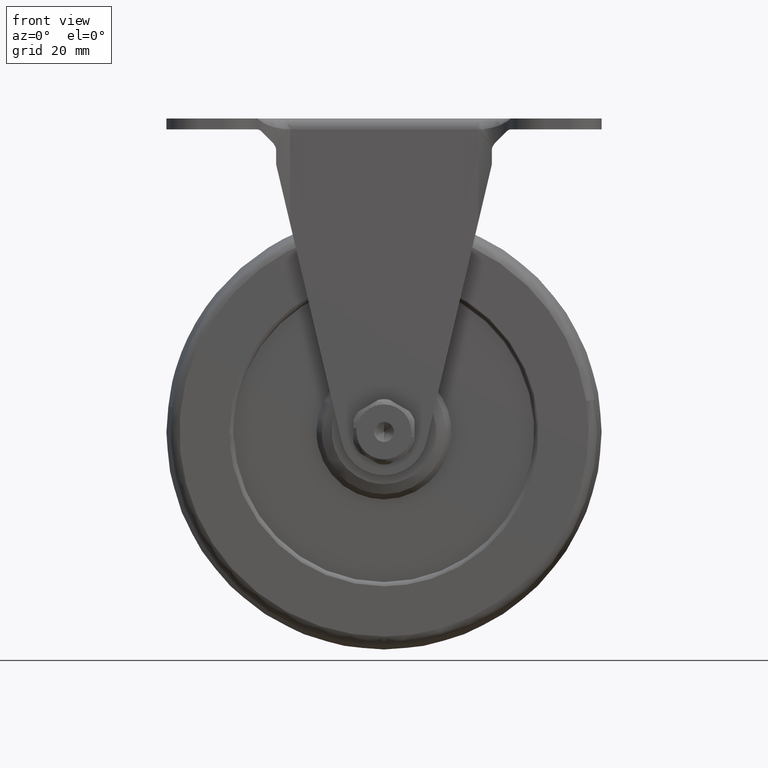
[diagram: clean part render]
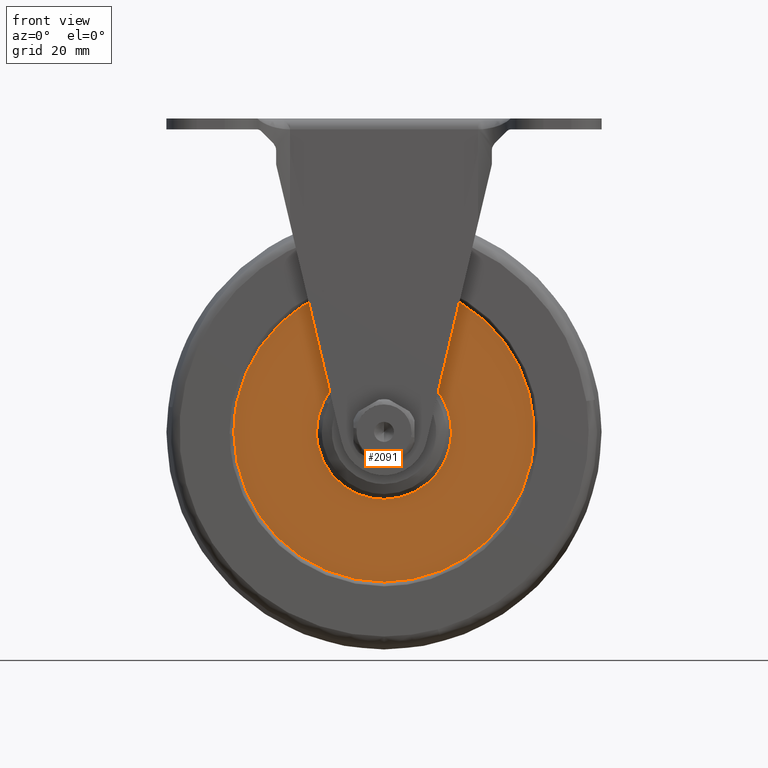
[diagram: same view with one face highlighted and labeled with its STEP entity id]
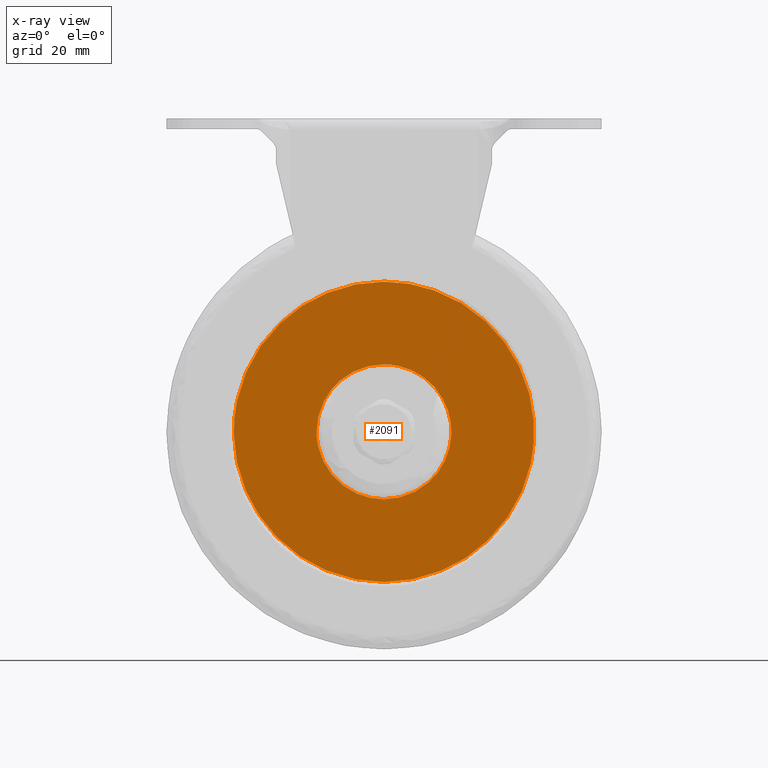
[diagram: x-ray of the same camera — body ghosted, the highlighted face saturated]
A machine part, front view. The second image highlights one B-rep face of the part: STEP entity #2091.
The next image is the same camera in x-ray: the body ghosted, the highlighted face saturated — about 0% of this face is hidden behind the body in this view.
In plain terms, the highlighted face is a freeform B-spline surface patch.
Its self-contained STEP definition (entity closure, byte-faithful):
#551=CARTESIAN_POINT('',(-15.132588110654000,-12.499999999325320,-3.354814017332686));
#552=VERTEX_POINT('',#551);
#558=CARTESIAN_POINT('',(0.0,-12.500000000000000,-15.500000000000000));
#559=VERTEX_POINT('',#558);
#560=CARTESIAN_POINT('',(-15.132588110654000,-12.499999999325315,-3.354814017332686));
#561=CARTESIAN_POINT('',(-12.440065198940280,-12.500000000000002,-15.500000000000000));
#562=CARTESIAN_POINT('',(0.0,-12.500000000000000,-15.500000000000000));
#570=(BOUNDED_CURVE()B_SPLINE_CURVE(2,(#560,#561,#562),.UNSPECIFIED.,.F.,.U.)B_SPLINE_CURVE_WITH_KNOTS((3,3),(0.787040114695798,1.0),.UNSPECIFIED.)CURVE()GEOMETRIC_REPRESENTATION_ITEM()RATIONAL_B_SPLINE_CURVE((0.926068516259643,0.750501974860435,1.0))REPRESENTATION_ITEM(''));
#571=EDGE_CURVE('',#552,#559,#570,.T.);
#573=CARTESIAN_POINT('',(0.0,-12.500000000000000,15.500000000000000));
#574=VERTEX_POINT('',#573);
#575=CARTESIAN_POINT('',(0.0,-12.500000000000000,-15.500000000000000));
#576=CARTESIAN_POINT('',(15.500000000000004,-12.500000000000000,-15.500000000000004));
#577=CARTESIAN_POINT('',(15.500000000000000,-12.500000000000000,1.211545E-015));
#578=CARTESIAN_POINT('',(15.500000000000004,-12.500000000000000,15.500000000000004));
#579=CARTESIAN_POINT('',(0.0,-12.500000000000000,15.500000000000000));
#587=(BOUNDED_CURVE()B_SPLINE_CURVE(2,(#575,#576,#577,#578,#579),.UNSPECIFIED.,.F.,.U.)B_SPLINE_CURVE_WITH_KNOTS((3,2,3),(0.0,0.250000000000000,0.500000000000000),.UNSPECIFIED.)CURVE()GEOMETRIC_REPRESENTATION_ITEM()RATIONAL_B_SPLINE_CURVE((1.0,0.707106781186548,1.0,0.707106781186548,1.0))REPRESENTATION_ITEM(''));
#588=EDGE_CURVE('',#559,#574,#587,.T.);
#590=CARTESIAN_POINT('',(-13.834001950111070,-12.499999999993159,6.990736015935780));
#591=VERTEX_POINT('',#590);
#592=CARTESIAN_POINT('',(0.0,-12.500000000000000,15.500000000000000));
#593=CARTESIAN_POINT('',(-9.534015697552345,-12.500000000000000,15.500000000000005));
#594=CARTESIAN_POINT('',(-13.834001950111064,-12.499999999993152,6.990736015935780));
#602=(BOUNDED_CURVE()B_SPLINE_CURVE(2,(#592,#593,#594),.UNSPECIFIED.,.F.,.U.)B_SPLINE_CURVE_WITH_KNOTS((3,3),(0.500000000000000,0.673312921997051),.UNSPECIFIED.)CURVE()GEOMETRIC_REPRESENTATION_ITEM()RATIONAL_B_SPLINE_CURVE((1.0,0.796951281657276,0.875430296784421))REPRESENTATION_ITEM(''));
#603=EDGE_CURVE('',#574,#591,#602,.T.);
#643=CARTESIAN_POINT('',(-13.834001950111070,-12.499999999993156,6.990736015935780));
#644=CARTESIAN_POINT('',(-15.500000000000000,-12.499999999999996,3.693884265518754));
#645=CARTESIAN_POINT('',(-15.500000000000000,-12.500000000000000,1.211545E-015));
#646=CARTESIAN_POINT('',(-15.500000000000005,-12.500000000000004,-1.697526082302225));
#647=CARTESIAN_POINT('',(-15.132588110654003,-12.499999999325317,-3.354814017332685));
#655=(BOUNDED_CURVE()B_SPLINE_CURVE(2,(#643,#644,#645,#646,#647),.UNSPECIFIED.,.F.,.U.)B_SPLINE_CURVE_WITH_KNOTS((3,2,3),(0.673312921997051,0.750000000000000,0.787040114695798),.UNSPECIFIED.)CURVE()GEOMETRIC_REPRESENTATION_ITEM()RATIONAL_B_SPLINE_CURVE((0.875430296784422,0.910155499529272,1.0,0.956604806326113,0.926068516259643))REPRESENTATION_ITEM(''));
#656=EDGE_CURVE('',#591,#552,#655,.T.);
#924=CARTESIAN_POINT('',(34.416015747491457,-12.500000003811570,2.405797179402224));
#925=VERTEX_POINT('',#924);
#939=CARTESIAN_POINT('',(0.0,-12.500000000000000,-34.500000000000000));
#940=VERTEX_POINT('',#939);
#941=CARTESIAN_POINT('',(0.0,-12.500000000000000,-34.500000000000000));
#942=CARTESIAN_POINT('',(34.500000000000000,-12.500000000000000,-34.500000000000000));
#943=CARTESIAN_POINT('',(34.500000000000000,-12.500000000000000,1.211545E-015));
#944=CARTESIAN_POINT('',(34.499999999999993,-12.500000000000004,1.204364497727191));
#945=CARTESIAN_POINT('',(34.416015747491464,-12.500000003811577,2.405797179402225));
#953=(BOUNDED_CURVE()B_SPLINE_CURVE(2,(#941,#942,#943,#944,#945),.UNSPECIFIED.,.F.,.U.)B_SPLINE_CURVE_WITH_KNOTS((3,2,3),(0.0,0.250000000000000,0.262166313465360),.UNSPECIFIED.)CURVE()GEOMETRIC_REPRESENTATION_ITEM()RATIONAL_B_SPLINE_CURVE((1.0,0.707106781186548,1.0,0.985746277152149,0.972879876386021))REPRESENTATION_ITEM(''));
#954=EDGE_CURVE('',#940,#925,#953,.T.);
#956=CARTESIAN_POINT('',(-34.497276025030899,-12.500000003809809,-0.433528376035648));
#957=VERTEX_POINT('',#956);
#958=CARTESIAN_POINT('',(-34.497276025030899,-12.500000003809806,-0.433528376035648));
#959=CARTESIAN_POINT('',(-34.069161581683872,-12.500000000000002,-34.500000000000000));
#960=CARTESIAN_POINT('',(0.0,-12.500000000000000,-34.500000000000000));
#968=(BOUNDED_CURVE()B_SPLINE_CURVE(2,(#958,#959,#960),.UNSPECIFIED.,.F.,.U.)B_SPLINE_CURVE_WITH_KNOTS((3,3),(0.752215704078883,1.0),.UNSPECIFIED.)CURVE()GEOMETRIC_REPRESENTATION_ITEM()RATIONAL_B_SPLINE_CURVE((0.994854295642605,0.709702639984957,1.0))REPRESENTATION_ITEM(''));
#969=EDGE_CURVE('',#957,#940,#968,.T.);
#1056=CARTESIAN_POINT('',(0.0,-12.500000000000000,34.500000000000000));
#1057=VERTEX_POINT('',#1056);
#1058=CARTESIAN_POINT('',(0.0,-12.500000000000000,34.500000000000000));
#1059=CARTESIAN_POINT('',(-34.500000000000000,-12.500000000000000,34.500000000000000));
#1060=CARTESIAN_POINT('',(-34.500000000000000,-12.500000000000000,1.211545E-015));
#1061=CARTESIAN_POINT('',(-34.500000000000007,-12.500000000000005,-0.216772745780260));
#1062=CARTESIAN_POINT('',(-34.497276025030899,-12.500000003809808,-0.433528376035648));
#1070=(BOUNDED_CURVE()B_SPLINE_CURVE(2,(#1058,#1059,#1060,#1061,#1062),.UNSPECIFIED.,.F.,.U.)B_SPLINE_CURVE_WITH_KNOTS((3,2,3),(0.500000000000000,0.750000000000000,0.752215704078884),.UNSPECIFIED.)CURVE()GEOMETRIC_REPRESENTATION_ITEM()RATIONAL_B_SPLINE_CURVE((1.0,0.707106781186548,1.0,0.997404141201590,0.994854295642603))REPRESENTATION_ITEM(''));
#1071=EDGE_CURVE('',#1057,#957,#1070,.T.);
#1073=CARTESIAN_POINT('',(34.416015747491457,-12.500000003811568,2.405797179402224));
#1074=CARTESIAN_POINT('',(32.172521230605660,-12.499999999999998,34.500000000000000));
#1075=CARTESIAN_POINT('',(0.0,-12.500000000000000,34.500000000000000));
#1083=(BOUNDED_CURVE()B_SPLINE_CURVE(2,(#1073,#1074,#1075),.UNSPECIFIED.,.F.,.U.)B_SPLINE_CURVE_WITH_KNOTS((3,3),(0.262166313465360,0.500000000000000),.UNSPECIFIED.)CURVE()GEOMETRIC_REPRESENTATION_ITEM()RATIONAL_B_SPLINE_CURVE((0.972879876386021,0.721360504034398,1.0))REPRESENTATION_ITEM(''));
#1084=EDGE_CURVE('',#925,#1057,#1083,.T.);
#2074=CARTESIAN_POINT('',(-37.943493667972092,-12.500000000000000,-37.946549866264611));
#2075=CARTESIAN_POINT('',(-37.943493667972092,-12.500000000000000,37.946551716988843));
#2076=CARTESIAN_POINT('',(37.942278767416973,-12.500000000000000,-37.946549866264611));
#2077=CARTESIAN_POINT('',(37.942278767416973,-12.500000000000000,37.946551716988843));
#2078=B_SPLINE_SURFACE_WITH_KNOTS('',1,1,((#2074,#2076),(#2075,#2077)),.UNSPECIFIED.,.F.,.F.,.U.,(2,2),(2,2),(0.0,75.893101583253440),(0.0,75.885772435389057),.UNSPECIFIED.);
#2079=ORIENTED_EDGE('',*,*,#954,.T.);
#2080=ORIENTED_EDGE('',*,*,#1084,.T.);
#2081=ORIENTED_EDGE('',*,*,#1071,.T.);
#2082=ORIENTED_EDGE('',*,*,#969,.T.);
#2083=EDGE_LOOP('',(#2079,#2080,#2081,#2082));
#2084=FACE_OUTER_BOUND('',#2083,.T.);
#2085=ORIENTED_EDGE('',*,*,#588,.F.);
#2086=ORIENTED_EDGE('',*,*,#571,.F.);
#2087=ORIENTED_EDGE('',*,*,#656,.F.);
#2088=ORIENTED_EDGE('',*,*,#603,.F.);
#2089=EDGE_LOOP('',(#2085,#2086,#2087,#2088));
#2090=FACE_BOUND('',#2089,.T.);
#2091=ADVANCED_FACE('',(#2084,#2090),#2078,.F.);